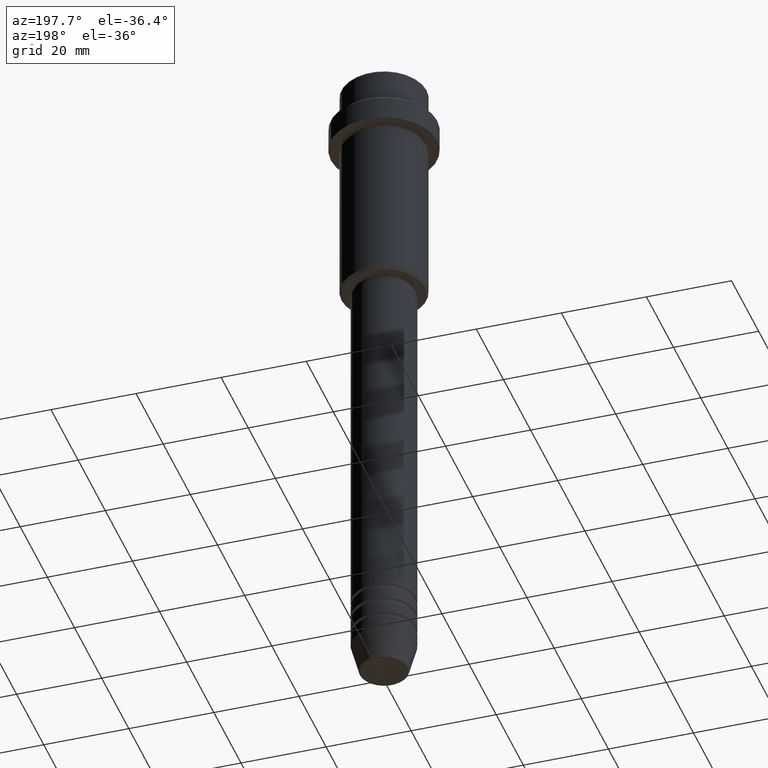
[diagram: clean part render]
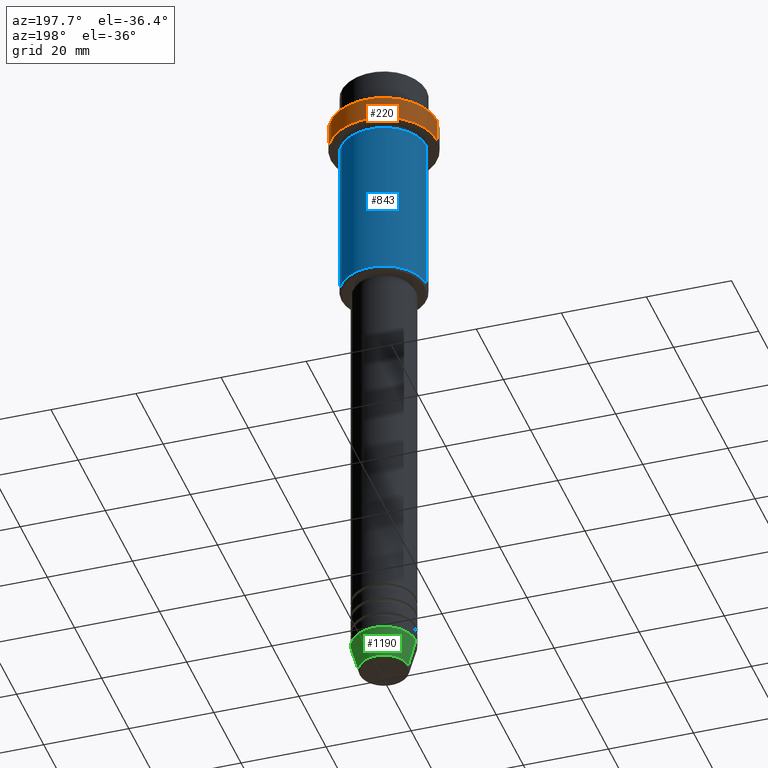
[diagram: same view with three faces highlighted in distinct colors, each labeled with its STEP entity id]
A machine part, auxiliary view with three faces highlighted in distinct colors.
Their STEP definitions:

[orange] entity #220 — the highlighted cylindrical surface (partial cylindrical patch) has radius 12.5 mm, axis along (-0, -0, 1).
#26 = EDGE_CURVE ( 'NONE', #1046, #682, #1233, .T. ) ;
#64 = LINE ( 'NONE', #493, #691 ) ;
#117 = DIRECTION ( 'NONE',  ( -0.000000000000000000, -0.000000000000000000, 1.000000000000000000 ) ) ;
#132 = CARTESIAN_POINT ( 'NONE',  ( 0.000000000000000000, 0.000000000000000000, 0.000000000000000000 ) ) ;
#148 = CIRCLE ( 'NONE', #803, 12.50000000000000000 ) ;
#155 = DIRECTION ( 'NONE',  ( -0.000000000000000000, -0.000000000000000000, 1.000000000000000000 ) ) ;
#179 = ORIENTED_EDGE ( 'NONE', *, *, #1416, .T. ) ;
#189 = DIRECTION ( 'NONE',  ( 1.000000000000000000, 0.000000000000000000, 0.000000000000000000 ) ) ;
#220 = ADVANCED_FACE ( 'NONE', ( #435 ), #870, .T. ) ;
#221 = CARTESIAN_POINT ( 'NONE',  ( 12.50000000000000000, 0.000000000000000000, -9.499999999999991118 ) ) ;
#347 = VECTOR ( 'NONE', #757, 1000.000000000000000 ) ;
#435 = FACE_OUTER_BOUND ( 'NONE', #1038, .T. ) ;
#462 = CARTESIAN_POINT ( 'NONE',  ( 0.000000000000000000, 0.000000000000000000, -15.00000000000000000 ) ) ;
#491 = VERTEX_POINT ( 'NONE', #739 ) ;
#493 = CARTESIAN_POINT ( 'NONE',  ( -12.50000000000000000, 1.530808498934191521E-15, 0.000000000000000000 ) ) ;
#542 = ORIENTED_EDGE ( 'NONE', *, *, #1195, .T. ) ;
#655 = CARTESIAN_POINT ( 'NONE',  ( 12.50000000000000000, 0.000000000000000000, 0.000000000000000000 ) ) ;
#682 = VERTEX_POINT ( 'NONE', #221 ) ;
#691 = VECTOR ( 'NONE', #1293, 1000.000000000000000 ) ;
#739 = CARTESIAN_POINT ( 'NONE',  ( 12.50000000000000000, 0.000000000000000000, -15.00000000000000000 ) ) ;
#757 = DIRECTION ( 'NONE',  ( -0.000000000000000000, -0.000000000000000000, 1.000000000000000000 ) ) ;
#765 = CARTESIAN_POINT ( 'NONE',  ( -12.50000000000000000, 1.530808498934191521E-15, -9.499999999999991118 ) ) ;
#792 = ORIENTED_EDGE ( 'NONE', *, *, #1051, .F. ) ;
#803 = AXIS2_PLACEMENT_3D ( 'NONE', #462, #155, #1026 ) ;
#870 = CYLINDRICAL_SURFACE ( 'NONE', #1030, 12.50000000000000000 ) ;
#871 = ORIENTED_EDGE ( 'NONE', *, *, #26, .T. ) ;
#884 = AXIS2_PLACEMENT_3D ( 'NONE', #1390, #1381, #189 ) ;
#894 = VERTEX_POINT ( 'NONE', #1075 ) ;
#1026 = DIRECTION ( 'NONE',  ( 1.000000000000000000, 0.000000000000000000, 0.000000000000000000 ) ) ;
#1030 = AXIS2_PLACEMENT_3D ( 'NONE', #132, #117, #1316 ) ;
#1038 = EDGE_LOOP ( 'NONE', ( #542, #179, #871, #792 ) ) ;
#1046 = VERTEX_POINT ( 'NONE', #765 ) ;
#1051 = EDGE_CURVE ( 'NONE', #491, #682, #1408, .T. ) ;
#1075 = CARTESIAN_POINT ( 'NONE',  ( -12.50000000000000000, 1.530808498934191521E-15, -15.00000000000000000 ) ) ;
#1195 = EDGE_CURVE ( 'NONE', #491, #894, #148, .T. ) ;
#1233 = CIRCLE ( 'NONE', #884, 12.50000000000000000 ) ;
#1293 = DIRECTION ( 'NONE',  ( -0.000000000000000000, -0.000000000000000000, 1.000000000000000000 ) ) ;
#1316 = DIRECTION ( 'NONE',  ( 1.000000000000000000, 0.000000000000000000, 0.000000000000000000 ) ) ;
#1381 = DIRECTION ( 'NONE',  ( 0.000000000000000000, 0.000000000000000000, -1.000000000000000000 ) ) ;
#1390 = CARTESIAN_POINT ( 'NONE',  ( 0.000000000000000000, 0.000000000000000000, -9.499999999999991118 ) ) ;
#1408 = LINE ( 'NONE', #655, #347 ) ;
#1416 = EDGE_CURVE ( 'NONE', #894, #1046, #64, .T. ) ;

[blue] entity #843 — the highlighted cylindrical surface (partial cylindrical patch) has radius 10 mm, axis along (-0, -0, 1).
#20 = CARTESIAN_POINT ( 'NONE',  ( -9.999999999999998224, 1.224646799147353059E-15, -54.49999999999996447 ) ) ;
#114 = EDGE_CURVE ( 'NONE', #1282, #1313, #497, .T. ) ;
#119 = ORIENTED_EDGE ( 'NONE', *, *, #1368, .F. ) ;
#147 = VECTOR ( 'NONE', #393, 1000.000000000000000 ) ;
#217 = ORIENTED_EDGE ( 'NONE', *, *, #586, .T. ) ;
#226 = ORIENTED_EDGE ( 'NONE', *, *, #114, .T. ) ;
#245 = ORIENTED_EDGE ( 'NONE', *, *, #988, .F. ) ;
#298 = CARTESIAN_POINT ( 'NONE',  ( -9.999999999999998224, 1.224646799147353059E-15, -16.00000000000000000 ) ) ;
#350 = CYLINDRICAL_SURFACE ( 'NONE', #1302, 9.999999999999998224 ) ;
#371 = CARTESIAN_POINT ( 'NONE',  ( 0.000000000000000000, 0.000000000000000000, 0.000000000000000000 ) ) ;
#393 = DIRECTION ( 'NONE',  ( -0.000000000000000000, -0.000000000000000000, 1.000000000000000000 ) ) ;
#497 = LINE ( 'NONE', #627, #1169 ) ;
#502 = CARTESIAN_POINT ( 'NONE',  ( 0.000000000000000000, 0.000000000000000000, -54.49999999999996447 ) ) ;
#509 = VERTEX_POINT ( 'NONE', #949 ) ;
#513 = DIRECTION ( 'NONE',  ( -0.000000000000000000, -0.000000000000000000, 1.000000000000000000 ) ) ;
#572 = FACE_OUTER_BOUND ( 'NONE', #1206, .T. ) ;
#586 = EDGE_CURVE ( 'NONE', #509, #1282, #670, .T. ) ;
#593 = DIRECTION ( 'NONE',  ( 1.000000000000000000, 0.000000000000000000, 0.000000000000000000 ) ) ;
#627 = CARTESIAN_POINT ( 'NONE',  ( -9.999999999999998224, 1.224646799147353059E-15, 0.000000000000000000 ) ) ;
#638 = DIRECTION ( 'NONE',  ( -0.000000000000000000, -0.000000000000000000, 1.000000000000000000 ) ) ;
#670 = CIRCLE ( 'NONE', #782, 9.999999999999998224 ) ;
#693 = VERTEX_POINT ( 'NONE', #982 ) ;
#758 = CIRCLE ( 'NONE', #952, 9.999999999999998224 ) ;
#782 = AXIS2_PLACEMENT_3D ( 'NONE', #502, #513, #959 ) ;
#843 = ADVANCED_FACE ( 'NONE', ( #572 ), #350, .T. ) ;
#923 = DIRECTION ( 'NONE',  ( -0.000000000000000000, -0.000000000000000000, 1.000000000000000000 ) ) ;
#933 = CARTESIAN_POINT ( 'NONE',  ( 9.999999999999998224, 0.000000000000000000, 0.000000000000000000 ) ) ;
#949 = CARTESIAN_POINT ( 'NONE',  ( 9.999999999999998224, 0.000000000000000000, -54.49999999999996447 ) ) ;
#952 = AXIS2_PLACEMENT_3D ( 'NONE', #1061, #1370, #593 ) ;
#959 = DIRECTION ( 'NONE',  ( -1.000000000000000000, 0.000000000000000000, 0.000000000000000000 ) ) ;
#982 = CARTESIAN_POINT ( 'NONE',  ( 9.999999999999998224, 0.000000000000000000, -16.00000000000000000 ) ) ;
#988 = EDGE_CURVE ( 'NONE', #509, #693, #1184, .T. ) ;
#1014 = DIRECTION ( 'NONE',  ( 1.000000000000000000, 0.000000000000000000, 0.000000000000000000 ) ) ;
#1061 = CARTESIAN_POINT ( 'NONE',  ( 0.000000000000000000, 0.000000000000000000, -16.00000000000000000 ) ) ;
#1169 = VECTOR ( 'NONE', #638, 1000.000000000000000 ) ;
#1184 = LINE ( 'NONE', #933, #147 ) ;
#1206 = EDGE_LOOP ( 'NONE', ( #217, #226, #119, #245 ) ) ;
#1282 = VERTEX_POINT ( 'NONE', #20 ) ;
#1302 = AXIS2_PLACEMENT_3D ( 'NONE', #371, #923, #1014 ) ;
#1313 = VERTEX_POINT ( 'NONE', #298 ) ;
#1368 = EDGE_CURVE ( 'NONE', #693, #1313, #758, .T. ) ;
#1370 = DIRECTION ( 'NONE',  ( -0.000000000000000000, -0.000000000000000000, 1.000000000000000000 ) ) ;

[green] entity #1190 — the highlighted conical surface has half-angle 15 deg.
#42 = VERTEX_POINT ( 'NONE', #396 ) ;
#43 = CARTESIAN_POINT ( 'NONE',  ( -5.723655072137197486, 8.097153428560739859E-16, -159.6294095225512137 ) ) ;
#47 = DIRECTION ( 'NONE',  ( 1.000000000000000000, 0.000000000000000000, 0.000000000000000000 ) ) ;
#131 = DIRECTION ( 'NONE',  ( 0.2588190451025213501, 0.000000000000000000, 0.9659258262890680902 ) ) ;
#142 = DIRECTION ( 'NONE',  ( -0.000000000000000000, -0.000000000000000000, 1.000000000000000000 ) ) ;
#230 = ORIENTED_EDGE ( 'NONE', *, *, #1226, .F. ) ;
#239 = ORIENTED_EDGE ( 'NONE', *, *, #735, .F. ) ;
#242 = DIRECTION ( 'NONE',  ( -0.000000000000000000, -0.000000000000000000, 1.000000000000000000 ) ) ;
#264 = CARTESIAN_POINT ( 'NONE',  ( 0.000000000000000000, 0.000000000000000000, -159.6294095225512137 ) ) ;
#315 = FACE_OUTER_BOUND ( 'NONE', #680, .T. ) ;
#353 = CARTESIAN_POINT ( 'NONE',  ( 0.000000000000000000, 0.000000000000000000, -153.0000000000000000 ) ) ;
#361 = CARTESIAN_POINT ( 'NONE',  ( 7.500000000000000000, 0.000000000000000000, -153.0000000000000000 ) ) ;
#364 = ORIENTED_EDGE ( 'NONE', *, *, #813, .T. ) ;
#394 = VECTOR ( 'NONE', #1002, 1000.000000000000000 ) ;
#396 = CARTESIAN_POINT ( 'NONE',  ( 5.723655072137197486, 0.000000000000000000, -159.6294095225512137 ) ) ;
#416 = VECTOR ( 'NONE', #131, 1000.000000000000000 ) ;
#482 = AXIS2_PLACEMENT_3D ( 'NONE', #650, #1110, #799 ) ;
#511 = CIRCLE ( 'NONE', #718, 5.723655072137197486 ) ;
#625 = EDGE_CURVE ( 'NONE', #798, #704, #1193, .T. ) ;
#650 = CARTESIAN_POINT ( 'NONE',  ( 0.000000000000000000, 0.000000000000000000, -153.0000000000000000 ) ) ;
#664 = LINE ( 'NONE', #760, #416 ) ;
#680 = EDGE_LOOP ( 'NONE', ( #364, #814, #230, #239 ) ) ;
#704 = VERTEX_POINT ( 'NONE', #1088 ) ;
#718 = AXIS2_PLACEMENT_3D ( 'NONE', #264, #242, #1117 ) ;
#735 = EDGE_CURVE ( 'NONE', #42, #774, #664, .T. ) ;
#742 = CIRCLE ( 'NONE', #1101, 7.500000000000000000 ) ;
#760 = CARTESIAN_POINT ( 'NONE',  ( 7.500000000000000000, 0.000000000000000000, -153.0000000000000000 ) ) ;
#774 = VERTEX_POINT ( 'NONE', #361 ) ;
#798 = VERTEX_POINT ( 'NONE', #43 ) ;
#799 = DIRECTION ( 'NONE',  ( 1.000000000000000000, 0.000000000000000000, 0.000000000000000000 ) ) ;
#813 = EDGE_CURVE ( 'NONE', #42, #798, #511, .T. ) ;
#814 = ORIENTED_EDGE ( 'NONE', *, *, #625, .T. ) ;
#1002 = DIRECTION ( 'NONE',  ( -0.2588190451025213501, 3.169619151431772337E-17, 0.9659258262890680902 ) ) ;
#1088 = CARTESIAN_POINT ( 'NONE',  ( -7.500000000000000000, 9.184850993605147944E-16, -153.0000000000000000 ) ) ;
#1093 = CARTESIAN_POINT ( 'NONE',  ( -7.500000000000000000, 9.184850993605147944E-16, -153.0000000000000000 ) ) ;
#1101 = AXIS2_PLACEMENT_3D ( 'NONE', #353, #142, #47 ) ;
#1110 = DIRECTION ( 'NONE',  ( -0.000000000000000000, -0.000000000000000000, 1.000000000000000000 ) ) ;
#1117 = DIRECTION ( 'NONE',  ( 1.000000000000000000, 0.000000000000000000, 0.000000000000000000 ) ) ;
#1190 = ADVANCED_FACE ( 'NONE', ( #315 ), #1200, .T. ) ;
#1193 = LINE ( 'NONE', #1093, #394 ) ;
#1200 = CONICAL_SURFACE ( 'NONE', #482, 7.500000000000000000, 0.2617993877991500740 ) ;
#1226 = EDGE_CURVE ( 'NONE', #774, #704, #742, .T. ) ;